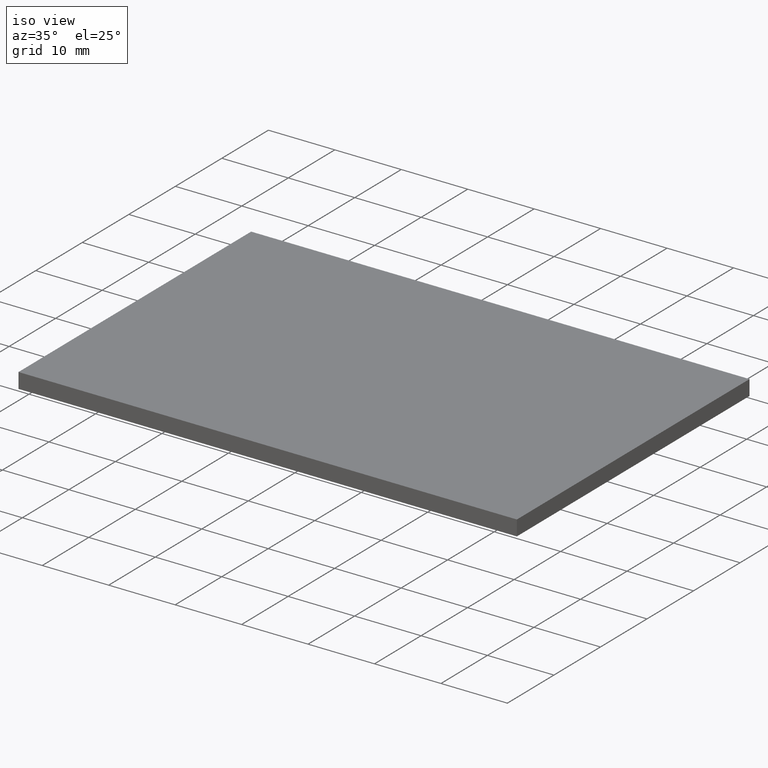
[diagram: clean part render]
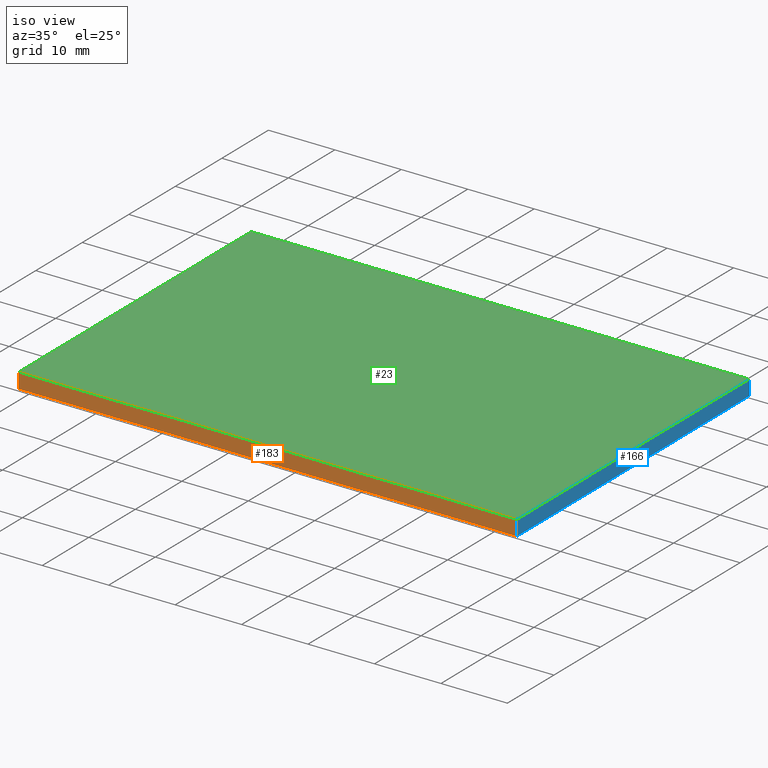
[diagram: same view with three faces highlighted in distinct colors, each labeled with its STEP entity id]
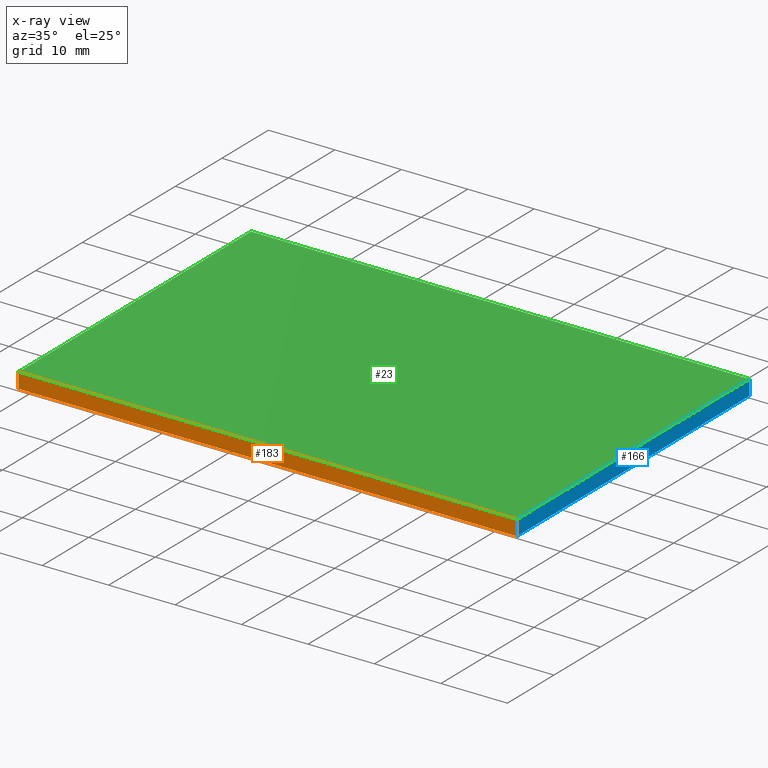
[diagram: x-ray of the same camera — body ghosted, the three highlighted faces saturated]
A machine part, iso view with three faces highlighted in distinct colors.
The next image is the same camera in x-ray (body ghosted, the three faces saturated) — at least one of them is partly hidden behind the body in this view.
Their STEP definitions:

[orange] entity #183 — the highlighted planar face has unit normal (0, 1, 0).
#6 = ORIENTED_EDGE ( 'NONE', *, *, #28, .F. ) ;
#10 = ORIENTED_EDGE ( 'NONE', *, *, #137, .T. ) ;
#18 = PLANE ( 'NONE',  #175 ) ;
#28 = EDGE_CURVE ( 'NONE', #109, #152, #56, .T. ) ;
#34 = DIRECTION ( 'NONE',  ( 0.0000000000000000000, -0.0000000000000000000, 1.000000000000000000 ) ) ;
#37 = CARTESIAN_POINT ( 'NONE',  ( 179.7299678845673700, 98.12648366905320100, 2.299999999999999800 ) ) ;
#44 = VECTOR ( 'NONE', #98, 1000.000000000000000 ) ;
#48 = DIRECTION ( 'NONE',  ( -0.0000000000000000000, -0.0000000000000000000, -1.000000000000000000 ) ) ;
#56 = LINE ( 'NONE', #133, #167 ) ;
#60 = EDGE_LOOP ( 'NONE', ( #10, #6, #199, #168 ) ) ;
#69 = CARTESIAN_POINT ( 'NONE',  ( 254.7299678845673700, 98.12648366905320100, 0.0000000000000000000 ) ) ;
#77 = LINE ( 'NONE', #37, #140 ) ;
#86 = DIRECTION ( 'NONE',  ( 1.000000000000000000, 0.0000000000000000000, 0.0000000000000000000 ) ) ;
#89 = VERTEX_POINT ( 'NONE', #102 ) ;
#92 = VECTOR ( 'NONE', #136, 1000.000000000000000 ) ;
#98 = DIRECTION ( 'NONE',  ( 1.000000000000000000, 0.0000000000000000000, 0.0000000000000000000 ) ) ;
#101 = DIRECTION ( 'NONE',  ( 0.0000000000000000000, 1.000000000000000000, 0.0000000000000000000 ) ) ;
#102 = CARTESIAN_POINT ( 'NONE',  ( 179.7299678845673700, 98.12648366905320100, 2.299999999999999800 ) ) ;
#109 = VERTEX_POINT ( 'NONE', #174 ) ;
#110 = LINE ( 'NONE', #134, #92 ) ;
#125 = LINE ( 'NONE', #156, #44 ) ;
#133 = CARTESIAN_POINT ( 'NONE',  ( 254.7299678845673700, 98.12648366905320100, 2.299999999999999800 ) ) ;
#134 = CARTESIAN_POINT ( 'NONE',  ( 179.7299678845673700, 98.12648366905320100, 2.299999999999999800 ) ) ;
#136 = DIRECTION ( 'NONE',  ( -0.0000000000000000000, -0.0000000000000000000, -1.000000000000000000 ) ) ;
#137 = EDGE_CURVE ( 'NONE', #194, #152, #125, .T. ) ;
#140 = VECTOR ( 'NONE', #86, 1000.000000000000000 ) ;
#142 = CARTESIAN_POINT ( 'NONE',  ( 179.7299678845673700, 98.12648366905320100, 0.0000000000000000000 ) ) ;
#152 = VERTEX_POINT ( 'NONE', #69 ) ;
#156 = CARTESIAN_POINT ( 'NONE',  ( 179.7299678845673700, 98.12648366905320100, 0.0000000000000000000 ) ) ;
#157 = FACE_OUTER_BOUND ( 'NONE', #60, .T. ) ;
#167 = VECTOR ( 'NONE', #48, 1000.000000000000000 ) ;
#168 = ORIENTED_EDGE ( 'NONE', *, *, #198, .T. ) ;
#170 = EDGE_CURVE ( 'NONE', #89, #109, #77, .T. ) ;
#174 = CARTESIAN_POINT ( 'NONE',  ( 254.7299678845673700, 98.12648366905320100, 2.299999999999999800 ) ) ;
#175 = AXIS2_PLACEMENT_3D ( 'NONE', #189, #101, #34 ) ;
#183 = ADVANCED_FACE ( 'NONE', ( #157 ), #18, .F. ) ;
#189 = CARTESIAN_POINT ( 'NONE',  ( 179.7299678845673700, 98.12648366905320100, 2.299999999999999800 ) ) ;
#194 = VERTEX_POINT ( 'NONE', #142 ) ;
#198 = EDGE_CURVE ( 'NONE', #89, #194, #110, .T. ) ;
#199 = ORIENTED_EDGE ( 'NONE', *, *, #170, .F. ) ;

[blue] entity #166 — the highlighted planar face has unit normal (-1, 0, 0).
#7 = DIRECTION ( 'NONE',  ( -0.0000000000000000000, 1.000000000000000000, -0.0000000000000000000 ) ) ;
#13 = LINE ( 'NONE', #118, #73 ) ;
#22 = DIRECTION ( 'NONE',  ( -1.000000000000000000, 0.0000000000000000000, 0.0000000000000000000 ) ) ;
#26 = ORIENTED_EDGE ( 'NONE', *, *, #138, .F. ) ;
#28 = EDGE_CURVE ( 'NONE', #109, #152, #56, .T. ) ;
#30 = VECTOR ( 'NONE', #160, 1000.000000000000000 ) ;
#36 = PLANE ( 'NONE',  #95 ) ;
#43 = VERTEX_POINT ( 'NONE', #145 ) ;
#45 = CARTESIAN_POINT ( 'NONE',  ( 254.7299678845673700, 148.1264836690531600, 2.299999999999999800 ) ) ;
#48 = DIRECTION ( 'NONE',  ( -0.0000000000000000000, -0.0000000000000000000, -1.000000000000000000 ) ) ;
#55 = VERTEX_POINT ( 'NONE', #196 ) ;
#56 = LINE ( 'NONE', #133, #167 ) ;
#68 = DIRECTION ( 'NONE',  ( 0.0000000000000000000, 0.0000000000000000000, 1.000000000000000000 ) ) ;
#69 = CARTESIAN_POINT ( 'NONE',  ( 254.7299678845673700, 98.12648366905320100, 0.0000000000000000000 ) ) ;
#72 = ORIENTED_EDGE ( 'NONE', *, *, #181, .T. ) ;
#73 = VECTOR ( 'NONE', #7, 1000.000000000000000 ) ;
#74 = ORIENTED_EDGE ( 'NONE', *, *, #28, .T. ) ;
#75 = LINE ( 'NONE', #45, #30 ) ;
#95 = AXIS2_PLACEMENT_3D ( 'NONE', #179, #22, #68 ) ;
#103 = DIRECTION ( 'NONE',  ( -0.0000000000000000000, 1.000000000000000000, -0.0000000000000000000 ) ) ;
#104 = VECTOR ( 'NONE', #103, 1000.000000000000000 ) ;
#109 = VERTEX_POINT ( 'NONE', #174 ) ;
#113 = FACE_OUTER_BOUND ( 'NONE', #124, .T. ) ;
#116 = LINE ( 'NONE', #149, #104 ) ;
#118 = CARTESIAN_POINT ( 'NONE',  ( 254.7299678845673700, 148.1264836690531600, 2.299999999999999800 ) ) ;
#124 = EDGE_LOOP ( 'NONE', ( #72, #139, #26, #74 ) ) ;
#128 = EDGE_CURVE ( 'NONE', #43, #55, #75, .T. ) ;
#133 = CARTESIAN_POINT ( 'NONE',  ( 254.7299678845673700, 98.12648366905320100, 2.299999999999999800 ) ) ;
#138 = EDGE_CURVE ( 'NONE', #109, #43, #13, .T. ) ;
#139 = ORIENTED_EDGE ( 'NONE', *, *, #128, .F. ) ;
#145 = CARTESIAN_POINT ( 'NONE',  ( 254.7299678845673700, 148.1264836690531600, 2.299999999999999800 ) ) ;
#149 = CARTESIAN_POINT ( 'NONE',  ( 254.7299678845673700, 148.1264836690531600, 0.0000000000000000000 ) ) ;
#152 = VERTEX_POINT ( 'NONE', #69 ) ;
#160 = DIRECTION ( 'NONE',  ( -0.0000000000000000000, -0.0000000000000000000, -1.000000000000000000 ) ) ;
#166 = ADVANCED_FACE ( 'NONE', ( #113 ), #36, .F. ) ;
#167 = VECTOR ( 'NONE', #48, 1000.000000000000000 ) ;
#174 = CARTESIAN_POINT ( 'NONE',  ( 254.7299678845673700, 98.12648366905320100, 2.299999999999999800 ) ) ;
#179 = CARTESIAN_POINT ( 'NONE',  ( 254.7299678845673700, 148.1264836690531600, 2.299999999999999800 ) ) ;
#181 = EDGE_CURVE ( 'NONE', #152, #55, #116, .T. ) ;
#196 = CARTESIAN_POINT ( 'NONE',  ( 254.7299678845673700, 148.1264836690531600, 0.0000000000000000000 ) ) ;

[green] entity #23 — the highlighted planar face has unit normal (-0, 0, 1).
#1 = ORIENTED_EDGE ( 'NONE', *, *, #138, .T. ) ;
#2 = VECTOR ( 'NONE', #85, 1000.000000000000000 ) ;
#7 = DIRECTION ( 'NONE',  ( -0.0000000000000000000, 1.000000000000000000, -0.0000000000000000000 ) ) ;
#13 = LINE ( 'NONE', #118, #73 ) ;
#17 = DIRECTION ( 'NONE',  ( 1.000000000000000000, 0.0000000000000000000, 0.0000000000000000000 ) ) ;
#21 = FACE_OUTER_BOUND ( 'NONE', #38, .T. ) ;
#23 = ADVANCED_FACE ( 'NONE', ( #21 ), #49, .T. ) ;
#24 = EDGE_CURVE ( 'NONE', #153, #89, #42, .T. ) ;
#29 = ORIENTED_EDGE ( 'NONE', *, *, #191, .T. ) ;
#32 = DIRECTION ( 'NONE',  ( -1.000000000000000000, -3.700743415417189100E-016, -0.0000000000000000000 ) ) ;
#37 = CARTESIAN_POINT ( 'NONE',  ( 179.7299678845673700, 98.12648366905320100, 2.299999999999999800 ) ) ;
#38 = EDGE_LOOP ( 'NONE', ( #187, #100, #1, #29 ) ) ;
#41 = VECTOR ( 'NONE', #32, 1000.000000000000000 ) ;
#42 = LINE ( 'NONE', #143, #2 ) ;
#43 = VERTEX_POINT ( 'NONE', #145 ) ;
#49 = PLANE ( 'NONE',  #126 ) ;
#73 = VECTOR ( 'NONE', #7, 1000.000000000000000 ) ;
#77 = LINE ( 'NONE', #37, #140 ) ;
#85 = DIRECTION ( 'NONE',  ( 0.0000000000000000000, -1.000000000000000000, 0.0000000000000000000 ) ) ;
#86 = DIRECTION ( 'NONE',  ( 1.000000000000000000, 0.0000000000000000000, 0.0000000000000000000 ) ) ;
#89 = VERTEX_POINT ( 'NONE', #102 ) ;
#100 = ORIENTED_EDGE ( 'NONE', *, *, #170, .T. ) ;
#102 = CARTESIAN_POINT ( 'NONE',  ( 179.7299678845673700, 98.12648366905320100, 2.299999999999999800 ) ) ;
#109 = VERTEX_POINT ( 'NONE', #174 ) ;
#118 = CARTESIAN_POINT ( 'NONE',  ( 254.7299678845673700, 148.1264836690531600, 2.299999999999999800 ) ) ;
#122 = CARTESIAN_POINT ( 'NONE',  ( 179.7299678845673700, 148.1264836690531300, 2.299999999999999800 ) ) ;
#126 = AXIS2_PLACEMENT_3D ( 'NONE', #163, #193, #17 ) ;
#131 = LINE ( 'NONE', #188, #41 ) ;
#138 = EDGE_CURVE ( 'NONE', #109, #43, #13, .T. ) ;
#140 = VECTOR ( 'NONE', #86, 1000.000000000000000 ) ;
#143 = CARTESIAN_POINT ( 'NONE',  ( 179.7299678845673700, 148.1264836690531300, 2.299999999999999800 ) ) ;
#145 = CARTESIAN_POINT ( 'NONE',  ( 254.7299678845673700, 148.1264836690531600, 2.299999999999999800 ) ) ;
#153 = VERTEX_POINT ( 'NONE', #122 ) ;
#163 = CARTESIAN_POINT ( 'NONE',  ( 0.0000000000000000000, 0.0000000000000000000, 2.299999999999999800 ) ) ;
#170 = EDGE_CURVE ( 'NONE', #89, #109, #77, .T. ) ;
#174 = CARTESIAN_POINT ( 'NONE',  ( 254.7299678845673700, 98.12648366905320100, 2.299999999999999800 ) ) ;
#187 = ORIENTED_EDGE ( 'NONE', *, *, #24, .T. ) ;
#188 = CARTESIAN_POINT ( 'NONE',  ( 179.7299678845673700, 148.1264836690531300, 2.299999999999999800 ) ) ;
#191 = EDGE_CURVE ( 'NONE', #43, #153, #131, .T. ) ;
#193 = DIRECTION ( 'NONE',  ( -0.0000000000000000000, 0.0000000000000000000, 1.000000000000000000 ) ) ;